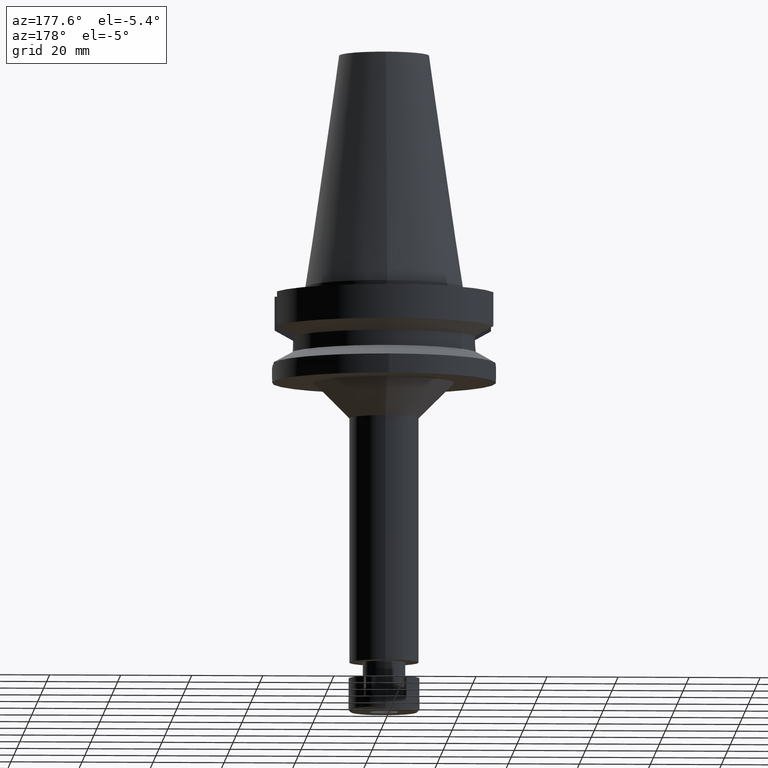
[diagram: clean part render]
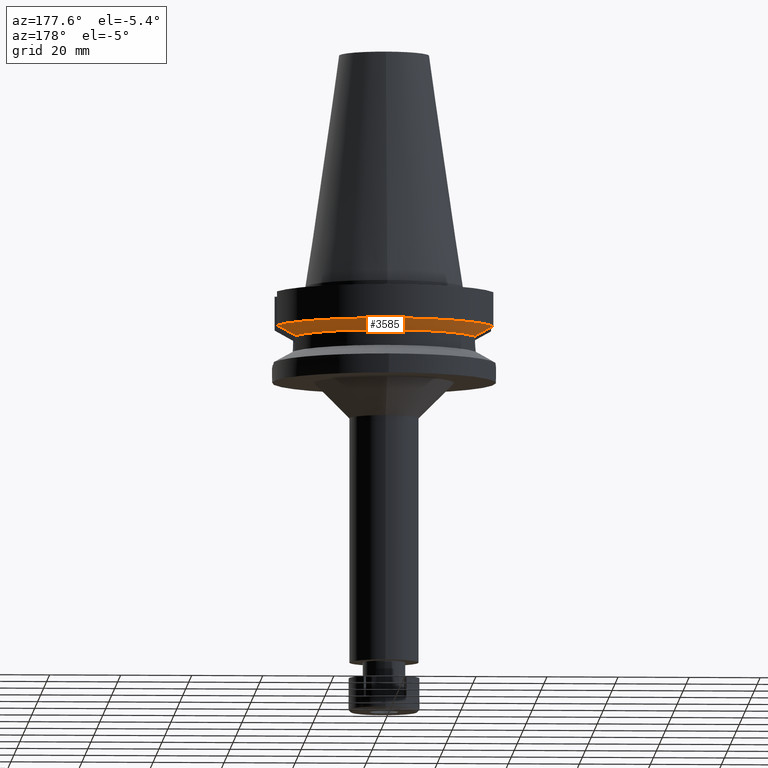
[diagram: same view with one face highlighted and labeled with its STEP entity id]
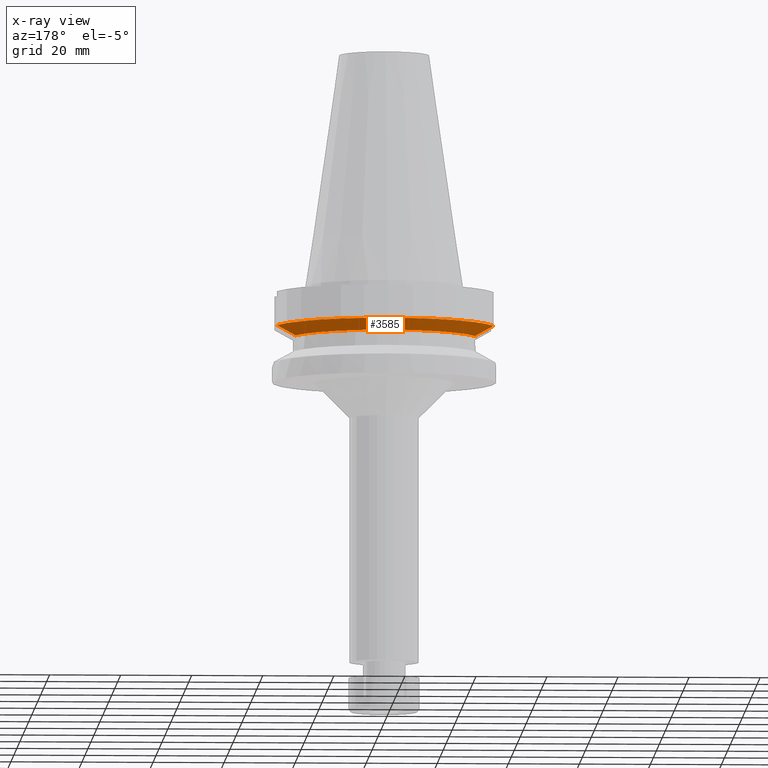
[diagram: x-ray of the same camera — body ghosted, the highlighted face saturated]
A machine part, auxiliary view. The second image highlights one B-rep face of the part: STEP entity #3585.
The next image is the same camera in x-ray: the body ghosted, the highlighted face saturated — about 0% of this face is hidden behind the body in this view.
In plain terms, the highlighted conical surface has half-angle 60 deg.
Its self-contained STEP definition (entity closure, byte-faithful):
#37 = CIRCLE ( 'NONE', #2742, 31.50000000000000000 ) ;
#258 = DIRECTION ( 'NONE',  ( 0.0000000000000000000, 1.000000000000000000, 0.0000000000000000000 ) ) ;
#436 = CARTESIAN_POINT ( 'NONE',  ( -30.45402162745999775, 8.050004143741000817, -11.56546832760999877 ) ) ;
#479 = B_SPLINE_CURVE_WITH_KNOTS ( 'NONE', 3,
 ( #1813, #2432, #2652, #436 ),
 .UNSPECIFIED., .F., .F.,
 ( 4, 4 ),
 ( 0.0000000000000000000, 1.000000000000000000 ),
 .UNSPECIFIED. ) ;
#602 = EDGE_CURVE ( 'NONE', #756, #3075, #479, .T. ) ;
#630 = B_SPLINE_CURVE_WITH_KNOTS ( 'NONE', 3,
 ( #1551, #3259, #3505, #2127 ),
 .UNSPECIFIED., .F., .F.,
 ( 4, 4 ),
 ( 0.0000000000000000000, 1.000000000000000000 ),
 .UNSPECIFIED. ) ;
#679 = ORIENTED_EDGE ( 'NONE', *, *, #602, .T. ) ;
#756 = VERTEX_POINT ( 'NONE', #786 ) ;
#786 = CARTESIAN_POINT ( 'NONE',  ( -25.24772216384000245, 8.050001586170999701, -14.45224487886000020 ) ) ;
#828 = CIRCLE ( 'NONE', #2888, 26.50000000000000711 ) ;
#1059 = ORIENTED_EDGE ( 'NONE', *, *, #3369, .T. ) ;
#1106 = CARTESIAN_POINT ( 'NONE',  ( 0.0000000000000000000, 1.065333950388000029E-14, -11.56550565266999975 ) ) ;
#1141 = VERTEX_POINT ( 'NONE', #1540 ) ;
#1252 = ORIENTED_EDGE ( 'NONE', *, *, #1343, .F. ) ;
#1314 = DIRECTION ( 'NONE',  ( 0.0000000000000000000, 0.0000000000000000000, -1.000000000000000000 ) ) ;
#1343 = EDGE_CURVE ( 'NONE', #1141, #3075, #37, .T. ) ;
#1409 = CARTESIAN_POINT ( 'NONE',  ( -30.45402162745999775, 8.050004143741000817, -11.56546832760999877 ) ) ;
#1540 = CARTESIAN_POINT ( 'NONE',  ( 30.45402291369999759, 8.049999277756999305, -11.56551215775999886 ) ) ;
#1551 = CARTESIAN_POINT ( 'NONE',  ( 30.45402291369999759, 8.049999277756999305, -11.56551215775999886 ) ) ;
#1745 = ORIENTED_EDGE ( 'NONE', *, *, #2899, .F. ) ;
#1813 = CARTESIAN_POINT ( 'NONE',  ( -25.24772216384000245, 8.050001586170999701, -14.45224487886000020 ) ) ;
#2041 = AXIS2_PLACEMENT_3D ( 'NONE', #2204, #2481, #3562 ) ;
#2127 = CARTESIAN_POINT ( 'NONE',  ( 25.24772413117000269, 8.049995415921999964, -14.45229202694999948 ) ) ;
#2204 = CARTESIAN_POINT ( 'NONE',  ( 0.0000000000000000000, 1.065333950388000029E-14, -13.00888132564000088 ) ) ;
#2432 = CARTESIAN_POINT ( 'NONE',  ( -26.83758147730778987, 8.050003175764926411, -13.57772735560244470 ) ) ;
#2481 = DIRECTION ( 'NONE',  ( 0.0000000000000000000, 0.0000000000000000000, 1.000000000000000000 ) ) ;
#2533 = EDGE_LOOP ( 'NONE', ( #1252, #1059, #1745, #679 ) ) ;
#2652 = CARTESIAN_POINT ( 'NONE',  ( -28.57295870828971474, 8.050008282443917196, -12.61547480651029574 ) ) ;
#2742 = AXIS2_PLACEMENT_3D ( 'NONE', #1106, #3607, #258 ) ;
#2794 = CONICAL_SURFACE ( 'NONE', #2041, 29.00000000000000000, 1.047197551196400456 ) ;
#2888 = AXIS2_PLACEMENT_3D ( 'NONE', #3021, #1314, #2993 ) ;
#2899 = EDGE_CURVE ( 'NONE', #756, #3234, #828, .T. ) ;
#2977 = FACE_OUTER_BOUND ( 'NONE', #2533, .T. ) ;
#2993 = DIRECTION ( 'NONE',  ( -0.9527442516822307583, 0.3037735849057093818, 0.0000000000000000000 ) ) ;
#3021 = CARTESIAN_POINT ( 'NONE',  ( 0.0000000000000000000, 1.065333950388000029E-14, -14.45225699861000024 ) ) ;
#3075 = VERTEX_POINT ( 'NONE', #1409 ) ;
#3234 = VERTEX_POINT ( 'NONE', #3453 ) ;
#3259 = CARTESIAN_POINT ( 'NONE',  ( 28.57292329438243073, 8.049998556454836418, -12.61549605317762435 ) ) ;
#3369 = EDGE_CURVE ( 'NONE', #1141, #3234, #630, .T. ) ;
#3453 = CARTESIAN_POINT ( 'NONE',  ( 25.24772413117000269, 8.049995415921999964, -14.45229202694999948 ) ) ;
#3505 = CARTESIAN_POINT ( 'NONE',  ( 26.83754616416163330, 8.049990821692649234, -13.57774887876419356 ) ) ;
#3562 = DIRECTION ( 'NONE',  ( 0.0000000000000000000, 1.000000000000000000, 0.0000000000000000000 ) ) ;
#3585 = ADVANCED_FACE ( 'NONE', ( #2977 ), #2794, .T. ) ;
#3607 = DIRECTION ( 'NONE',  ( 0.0000000000000000000, 0.0000000000000000000, 1.000000000000000000 ) ) ;